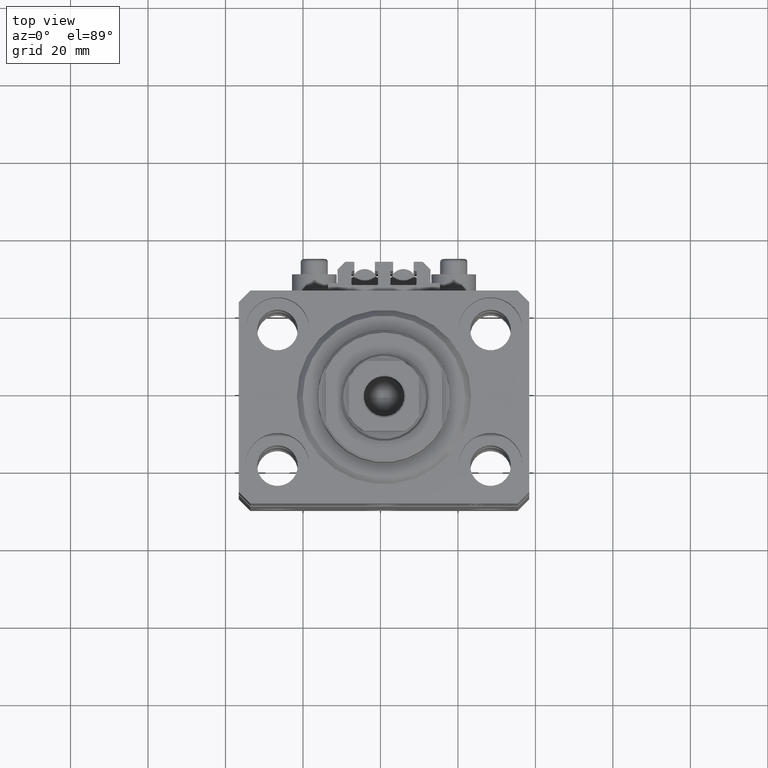
[diagram: clean part render]
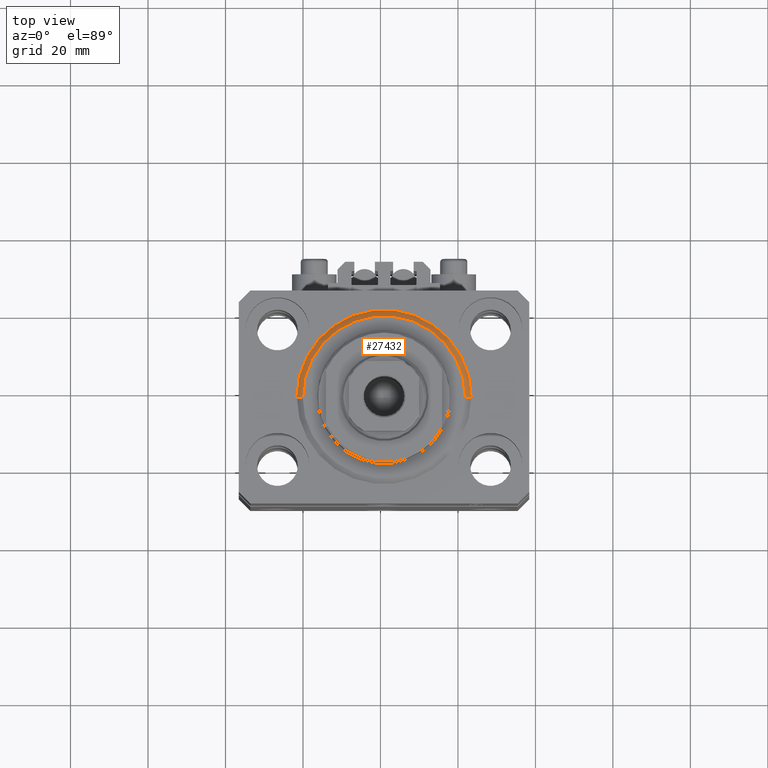
[diagram: same view with one face highlighted and labeled with its STEP entity id]
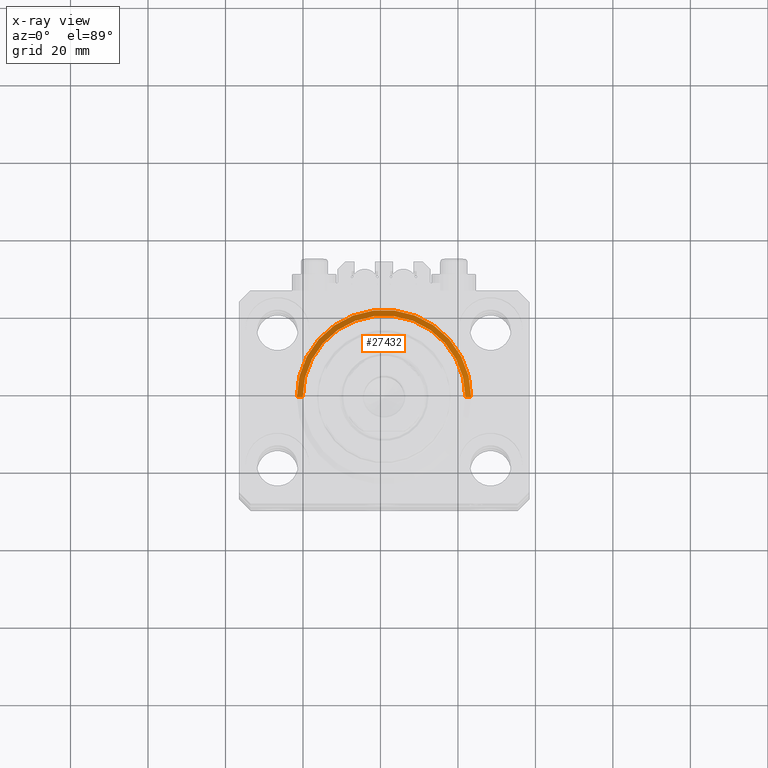
[diagram: x-ray of the same camera — body ghosted, the highlighted face saturated]
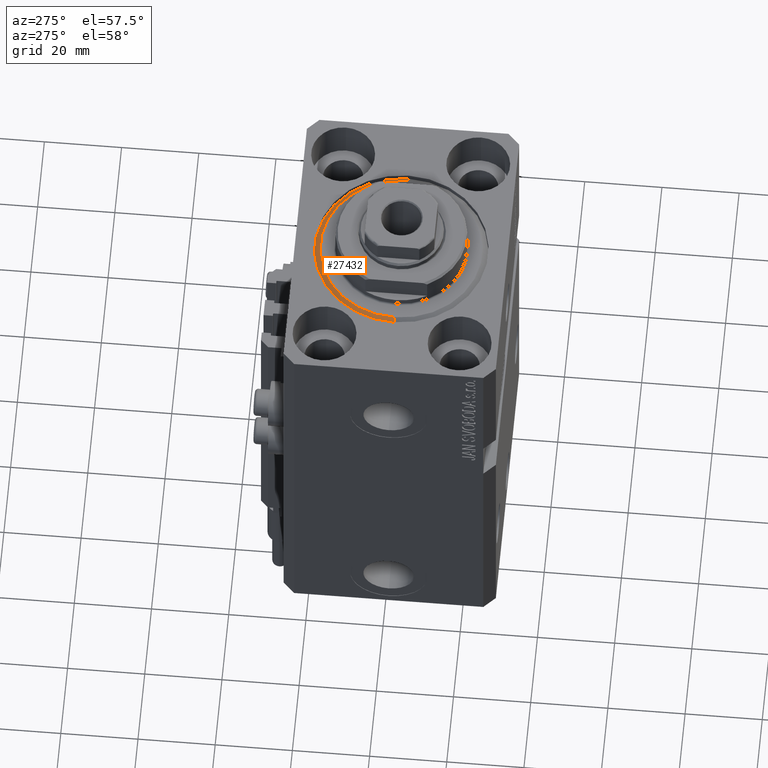
[diagram: same view with one face highlighted and labeled with its STEP entity id]
A machine part, top view. The second image highlights one B-rep face of the part: STEP entity #27432.
The next image is the same camera in x-ray: the body ghosted, the highlighted face saturated — about 0% of this face is hidden behind the body in this view.
A second angle (auxiliary view) of the same face is appended — the face is thin or edge-on in the first view.
In plain terms, the highlighted conical surface has half-angle 45 deg.
Its self-contained STEP definition (entity closure, byte-faithful):
#339 = AXIS2_PLACEMENT_3D ( 'NONE', #36910, #40078, #33253 ) ;
#563 = DIRECTION ( 'NONE',  ( 0.7071067811865500152, 0.000000000000000000, 0.7071067811865451302 ) ) ;
#1008 = DIRECTION ( 'NONE',  ( -0.7071067811865500152, 8.659560562354963673E-17, 0.7071067811865451302 ) ) ;
#1908 = CIRCLE ( 'NONE', #339, 22.50000000000000355 ) ;
#1937 = DIRECTION ( 'NONE',  ( 1.000000000000000000, 0.000000000000000000, 0.000000000000000000 ) ) ;
#4949 = CARTESIAN_POINT ( 'NONE',  ( -20.99999999999998934, 2.663606788145492628E-15, 0.000000000000000000 ) ) ;
#5042 = VECTOR ( 'NONE', #1008, 1000.000000000000114 ) ;
#6962 = CONICAL_SURFACE ( 'NONE', #28764, 22.50000000000000355, 0.7853981633974517207 ) ;
#7812 = CARTESIAN_POINT ( 'NONE',  ( -22.50000000000000355, 0.000000000000000000, 1.500000000000001332 ) ) ;
#9632 = ORIENTED_EDGE ( 'NONE', *, *, #45983, .T. ) ;
#13632 = CARTESIAN_POINT ( 'NONE',  ( 22.50000000000000355, 2.755455298081545172E-15, 1.500000000000001332 ) ) ;
#15899 = ORIENTED_EDGE ( 'NONE', *, *, #29187, .F. ) ;
#18133 = EDGE_CURVE ( 'NONE', #23816, #24490, #1908, .T. ) ;
#20214 = DIRECTION ( 'NONE',  ( -0.000000000000000000, -0.000000000000000000, 1.000000000000000000 ) ) ;
#20246 = CIRCLE ( 'NONE', #24148, 20.99999999999998934 ) ;
#21631 = ORIENTED_EDGE ( 'NONE', *, *, #37463, .F. ) ;
#23346 = VERTEX_POINT ( 'NONE', #26146 ) ;
#23816 = VERTEX_POINT ( 'NONE', #13632 ) ;
#24148 = AXIS2_PLACEMENT_3D ( 'NONE', #45518, #30440, #30682 ) ;
#24362 = FACE_OUTER_BOUND ( 'NONE', #29372, .T. ) ;
#24490 = VERTEX_POINT ( 'NONE', #7812 ) ;
#25451 = VERTEX_POINT ( 'NONE', #4949 ) ;
#26146 = CARTESIAN_POINT ( 'NONE',  ( 20.99999999999998934, 0.000000000000000000, 0.000000000000000000 ) ) ;
#27432 = ADVANCED_FACE ( 'NONE', ( #24362 ), #6962, .T. ) ;
#28764 = AXIS2_PLACEMENT_3D ( 'NONE', #38257, #20214, #1937 ) ;
#29187 = EDGE_CURVE ( 'NONE', #25451, #23346, #20246, .T. ) ;
#29372 = EDGE_LOOP ( 'NONE', ( #15899, #9632, #35754, #21631 ) ) ;
#30269 = LINE ( 'NONE', #34163, #5042 ) ;
#30440 = DIRECTION ( 'NONE',  ( -0.000000000000000000, -0.000000000000000000, -1.000000000000000000 ) ) ;
#30553 = LINE ( 'NONE', #33725, #42174 ) ;
#30682 = DIRECTION ( 'NONE',  ( 1.000000000000000000, 0.000000000000000000, 0.000000000000000000 ) ) ;
#33253 = DIRECTION ( 'NONE',  ( 1.000000000000000000, 0.000000000000000000, 0.000000000000000000 ) ) ;
#33725 = CARTESIAN_POINT ( 'NONE',  ( 22.50000000000000355, 0.000000000000000000, 1.500000000000001332 ) ) ;
#34163 = CARTESIAN_POINT ( 'NONE',  ( -22.50000000000000355, 2.755455298081545172E-15, 1.500000000000001332 ) ) ;
#35754 = ORIENTED_EDGE ( 'NONE', *, *, #18133, .F. ) ;
#36910 = CARTESIAN_POINT ( 'NONE',  ( 0.000000000000000000, 0.000000000000000000, 1.500000000000001332 ) ) ;
#37463 = EDGE_CURVE ( 'NONE', #23346, #23816, #30553, .T. ) ;
#38257 = CARTESIAN_POINT ( 'NONE',  ( 0.000000000000000000, 0.000000000000000000, 1.500000000000001332 ) ) ;
#40078 = DIRECTION ( 'NONE',  ( -0.000000000000000000, -0.000000000000000000, 1.000000000000000000 ) ) ;
#42174 = VECTOR ( 'NONE', #563, 1000.000000000000114 ) ;
#45518 = CARTESIAN_POINT ( 'NONE',  ( 0.000000000000000000, 0.000000000000000000, 0.000000000000000000 ) ) ;
#45983 = EDGE_CURVE ( 'NONE', #25451, #24490, #30269, .T. ) ;